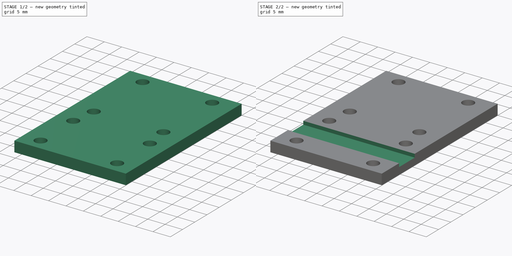
[diagram: build sequence overview — one tinted view per stage of 2, left to right]
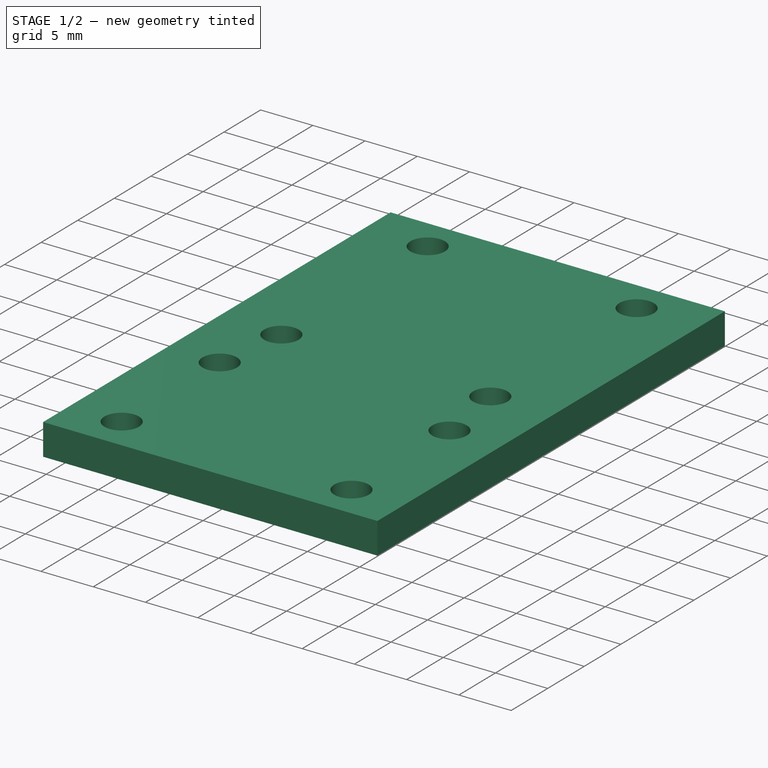
[diagram: stage 1 of 2 — iso view after this stage's code; geometry added in this stage tinted green]
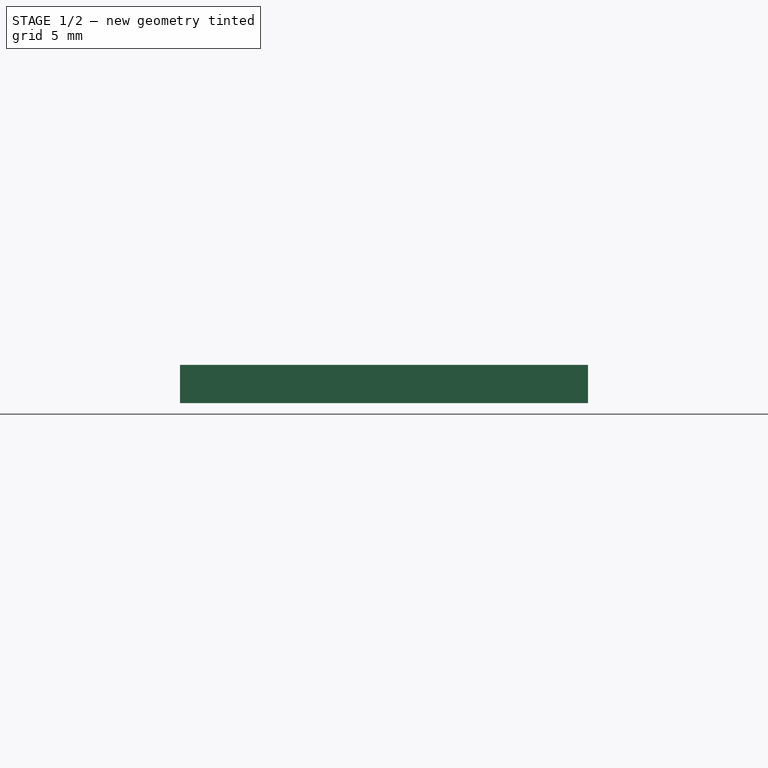
[diagram: stage 1 of 2 — front view after this stage's code; geometry added in this stage tinted green]
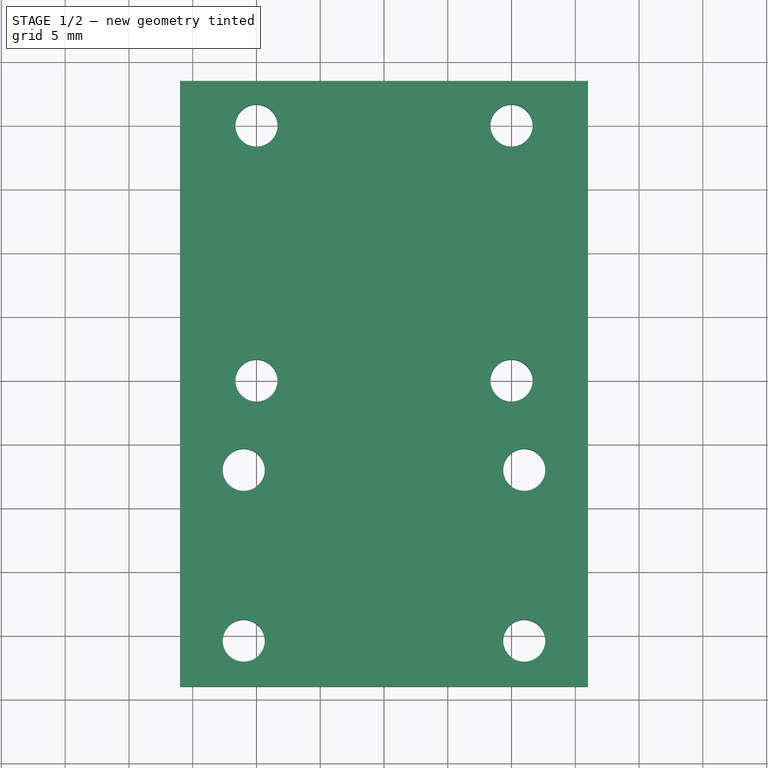
[diagram: stage 1 of 2 — top view after this stage's code; geometry added in this stage tinted green]
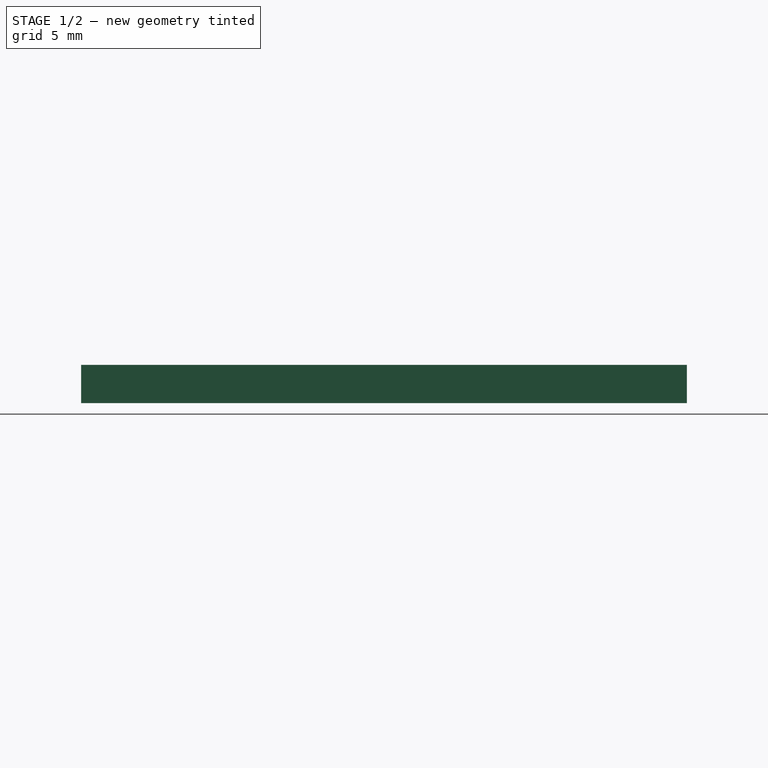
[diagram: stage 1 of 2 — right view after this stage's code; geometry added in this stage tinted green]
FCSTD DOCUMENT  (FreeCAD 0.19R24276 (Git))
Label: Knife_holder_bldc_part_3_hwin_belt_holder
License: All rights reserved
LicenseURL: http://en.wikipedia.org/wiki/All_rights_reserved
objects: Sketcher::SketchObject×2, PartDesign::Pad×1, PartDesign::Pocket×1, PartDesign::Body×1
note: 7 computed .brp shape members not serialized (recipe doc carries the construction recipe); baked Part::Feature solids carry a one-line shape summary decoded from their .brp

FEATURE [Sketcher::SketchObject] Sketch
  FullyConstrained = true
  MapMode = 5
  Support = -> [XY_Plane]
  sketch-geometry (23):
    g0: Circle CenterX=-10 CenterY=-10 CenterZ=0 NormalX=0 NormalY=0 NormalZ=1 AngleXU=0 Radius=1.65
    g1: Circle CenterX=-10 CenterY=10 CenterZ=0 NormalX=0 NormalY=0 NormalZ=1 AngleXU=0 Radius=1.65
    g2: Circle CenterX=10 CenterY=10 CenterZ=0 NormalX=0 NormalY=0 NormalZ=1 AngleXU=0 Radius=1.65
    g3: Circle CenterX=10 CenterY=-10 CenterZ=0 NormalX=0 NormalY=0 NormalZ=1 AngleXU=0 Radius=1.65
    g4: LineSegment StartX=-10 StartY=10 StartZ=0 EndX=10 EndY=10 EndZ=0
    g5: LineSegment StartX=10 StartY=10 StartZ=0 EndX=10 EndY=-10 EndZ=0
    g6: LineSegment StartX=10 StartY=-10 StartZ=0 EndX=-10 EndY=-10 EndZ=0
    g7: LineSegment StartX=-10 StartY=-10 StartZ=0 EndX=-10 EndY=10 EndZ=0
    g8: LineSegment StartX=-16 StartY=13.5 StartZ=0 EndX=16 EndY=13.5 EndZ=0
    g9: LineSegment StartX=16 StartY=-34 StartZ=0 EndX=-16 EndY=-34 EndZ=0
    g10: LineSegment StartX=-16 StartY=13.5 StartZ=0 EndX=-16 EndY=-34 EndZ=0
    g11: LineSegment StartX=16 StartY=13.5 StartZ=0 EndX=16 EndY=-34 EndZ=0
    g12: LineSegment StartX=-16 StartY=-20.5 StartZ=0 EndX=16 EndY=-20.5 EndZ=0
    g13: LineSegment StartX=-16 StartY=-26.9 StartZ=0 EndX=16 EndY=-26.9 EndZ=0
    g14: LineSegment StartX=-16 StartY=-13.5 StartZ=0 EndX=16 EndY=-13.5 EndZ=0
    g15: LineSegment StartX=-11 StartY=-17 StartZ=0 EndX=11 EndY=-17 EndZ=0
    g16: LineSegment StartX=11 StartY=-17 StartZ=0 EndX=11 EndY=-30.4 EndZ=0
    g17: LineSegment StartX=11 StartY=-30.4 StartZ=0 EndX=-11 EndY=-30.4 EndZ=0
    g18: LineSegment StartX=-11 StartY=-30.4 StartZ=0 EndX=-11 EndY=-17 EndZ=0
    g19: Circle CenterX=-11 CenterY=-17 CenterZ=0 NormalX=0 NormalY=0 NormalZ=1 AngleXU=0 Radius=1.65
    g20: Circle CenterX=11 CenterY=-17 CenterZ=0 NormalX=0 NormalY=0 NormalZ=1 AngleXU=0 Radius=1.65
    g21: Circle CenterX=-11 CenterY=-30.4 CenterZ=0 NormalX=0 NormalY=0 NormalZ=1 AngleXU=0 Radius=1.65
    g22: Circle CenterX=11 CenterY=-30.4 CenterZ=0 NormalX=0 NormalY=0 NormalZ=1 AngleXU=0 Radius=1.65
  constraints (63):
    c: Coincident(g4,g5)
    c: Coincident(g5,g6)
    c: Coincident(g6,g7)
    c: Coincident(g7,g4)
    c: Horizontal(g4)
    c: Horizontal(g6)
    c: Vertical(g5)
    c: Vertical(g7)
    c: DistanceY(g5,g5) = 20
    c: DistanceX(g6,g6) = 20
    c: Coincident(g0,g6)
    c: Coincident(g1,g4)
    c: Coincident(g2,g4)
    c: Coincident(g3,g5)
    c: Diameter(g0) = 3.3
    c: Equal(g0,g1)
    c: Equal(g0,g2)
    c: Equal(g0,g3)
    c: Symmetric(g1,g3,g-1)
    c: Horizontal(g8)
    c: DistanceX(g8,g8) = 32
    c: Horizontal(g9)
    c: DistanceY(g9,g-1) = 34
    c: Coincident(g10,g8)
    c: Coincident(g10,g9)
    c: Vertical(g10)
    c: Coincident(g11,g8)
    c: Coincident(g11,g9)
    c: Vertical(g11)
    c: DistanceX(g9,g-1) = 16
    c: DistanceY(g-1,g8) = 13.5
    c: Horizontal(g12)
    c: Horizontal(g13)
    c: Horizontal(g14)
    c: PointOnObject(g12,g11)
    c: PointOnObject(g14,g11)
    c: PointOnObject(g14,g10)
    c: PointOnObject(g12,g10)
    c: PointOnObject(g13,g10)
    c: PointOnObject(g13,g11)
    c: DistanceY(g14,g8) = 27
    c: Coincident(g15,g16)
    c: Coincident(g16,g17)
    c: Coincident(g17,g18)
    c: Coincident(g18,g15)
    c: Horizontal(g15)
    c: Horizontal(g17)
    c: Vertical(g16)
    c: Vertical(g18)
    c: Coincident(g19,g15)
    c: Coincident(g20,g15)
    c: Coincident(g21,g17)
    c: Coincident(g22,g16)
    c: Equal(g19,g20)
    c: Equal(g20,g22)
    c: Equal(g22,g21)
    c: Equal(g3,g20)
    c: DistanceX(g15,g15) = 22
    c: DistanceX(g19,g-1) = 11
    c: DistanceY(g20,g-1) = 17
    c: DistanceY(g21,g19) = 13.4
    c: DistanceY(g13,g12) = 6.4
    c: DistanceY(g12,g-1) = 20.5
FEATURE [PartDesign::Pad] Pad
  Direction = (1,1,1)
  Length = 3
  Length2 = 100
  Profile = -> Sketch
  Type = 0
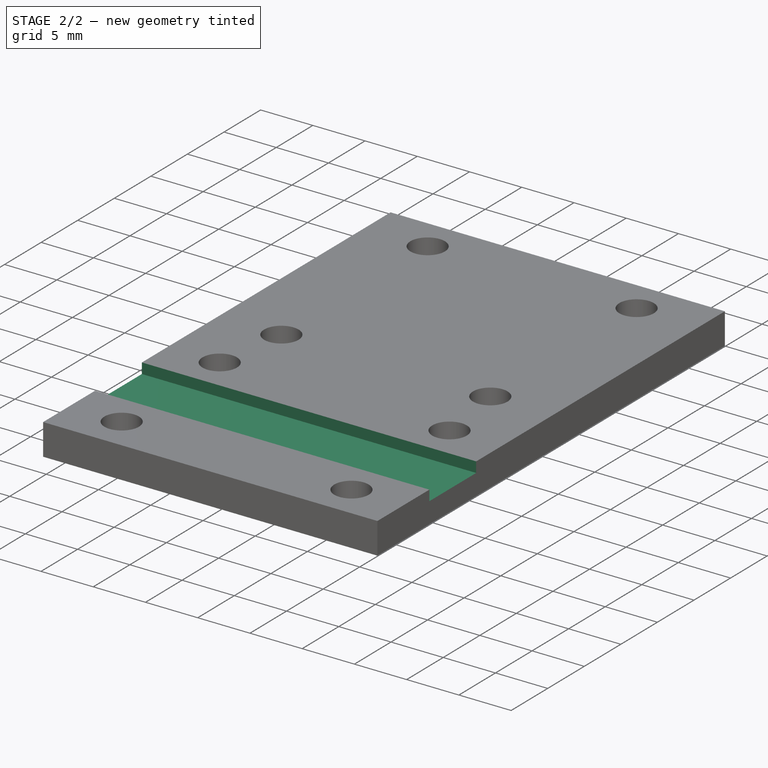
[diagram: stage 2 of 2 — iso view after this stage's code; geometry added in this stage tinted green]
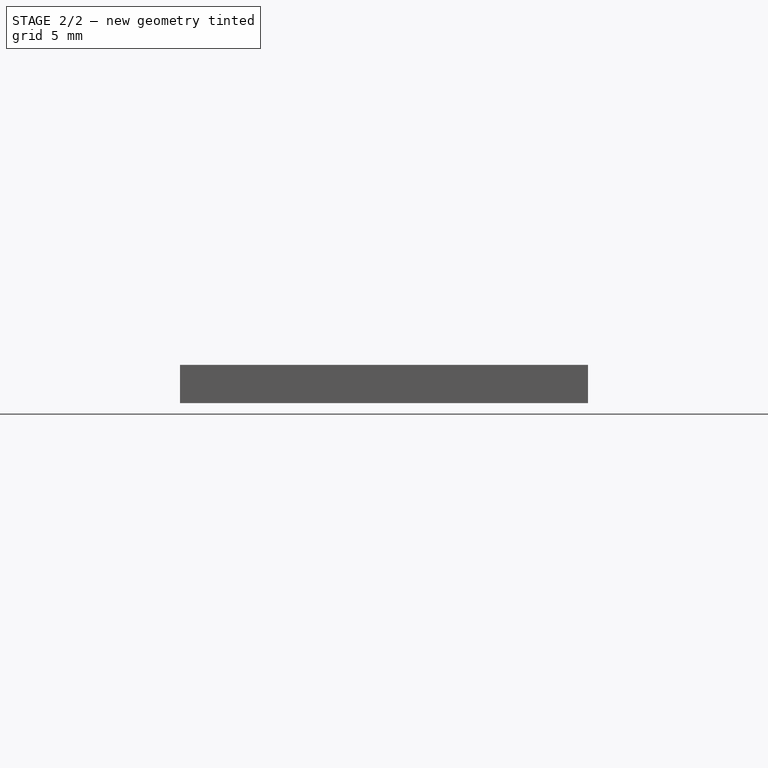
[diagram: stage 2 of 2 — front view after this stage's code; geometry added in this stage tinted green]
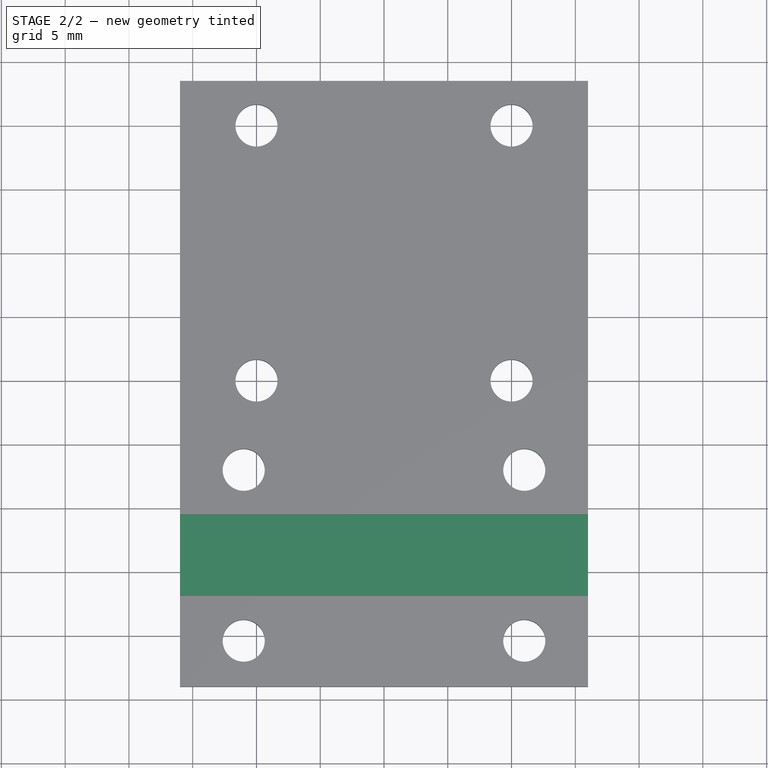
[diagram: stage 2 of 2 — top view after this stage's code; geometry added in this stage tinted green]
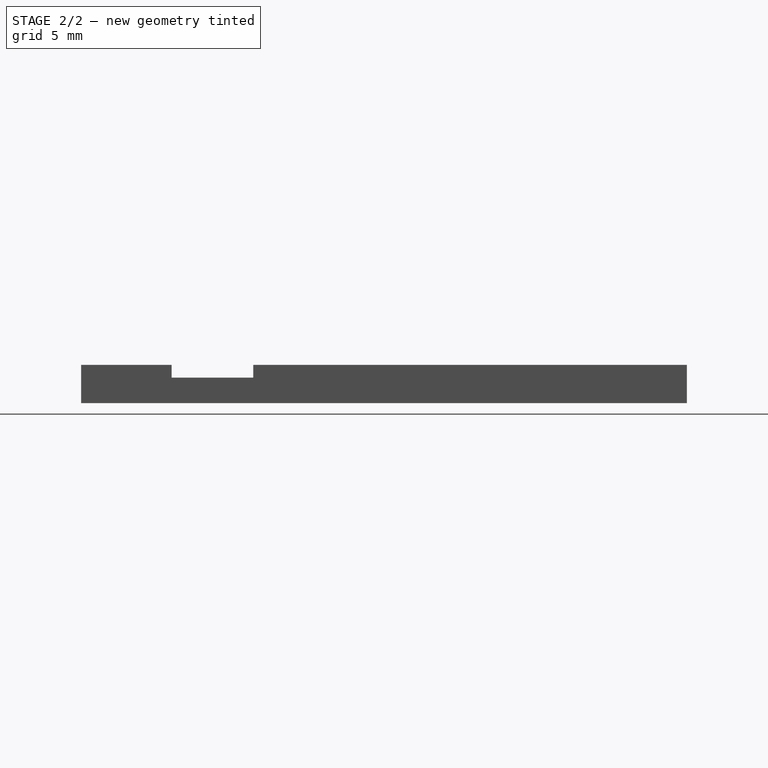
[diagram: stage 2 of 2 — right view after this stage's code; geometry added in this stage tinted green]
FEATURE [Sketcher::SketchObject] Sketch001
  FullyConstrained = false
  MapMode = 5
  Placement = pos=(0,0,3) rot=(0,0,1;0rad)
  Support = -> [Pad]
  sketch-geometry (4):
    g0: LineSegment StartX=-30.2289 StartY=-20.5 StartZ=0 EndX=31.1825 EndY=-20.5 EndZ=0
    g1: LineSegment StartX=31.1825 StartY=-20.5 StartZ=0 EndX=31.1825 EndY=-26.9 EndZ=0
    g2: LineSegment StartX=31.1825 StartY=-26.9 StartZ=0 EndX=-30.2289 EndY=-26.9 EndZ=0
    g3: LineSegment StartX=-30.2289 StartY=-26.9 StartZ=0 EndX=-30.2289 EndY=-20.5 EndZ=0
  constraints (10):
    c: Coincident(g0,g1)
    c: Coincident(g1,g2)
    c: Coincident(g2,g3)
    c: Coincident(g3,g0)
    c: Horizontal(g0)
    c: Horizontal(g2)
    c: Vertical(g1)
    c: Vertical(g3)
    c: DistanceY(g0,g-1) = 20.5
    c: DistanceY(g1,g1) = 6.4
FEATURE [PartDesign::Pocket] Pocket
  BaseFeature = -> Pad
  Length = 1
  Length2 = 100
  Profile = -> Sketch001
  Type = 0
FEATURE [PartDesign::Body] Body
  Group = -> [Sketch,Pad,Sketch001,Pocket]
  Origin = -> Origin
  Tip = -> Pocket
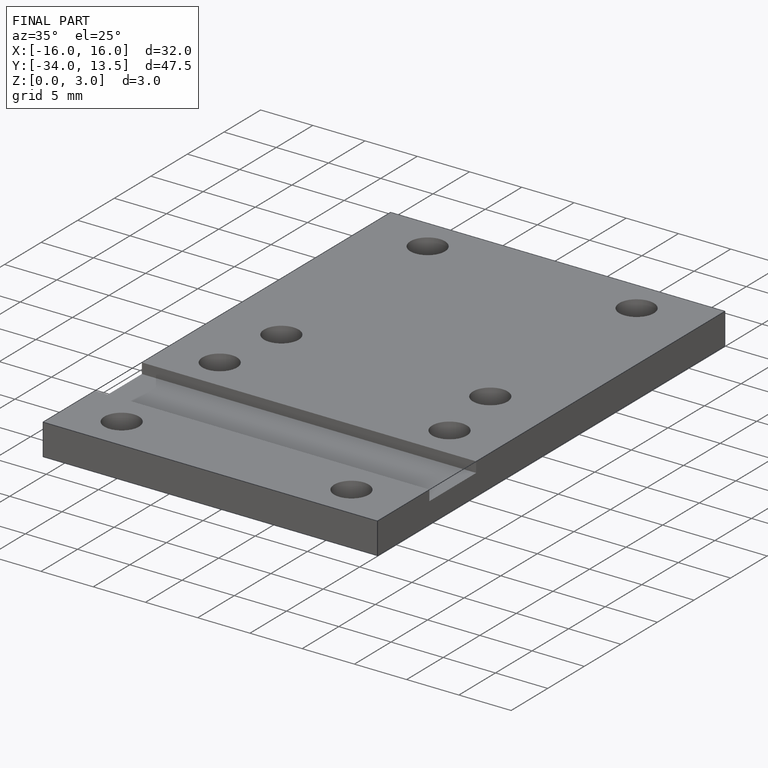
[diagram: finished part — iso view with bounding-box wireframe]
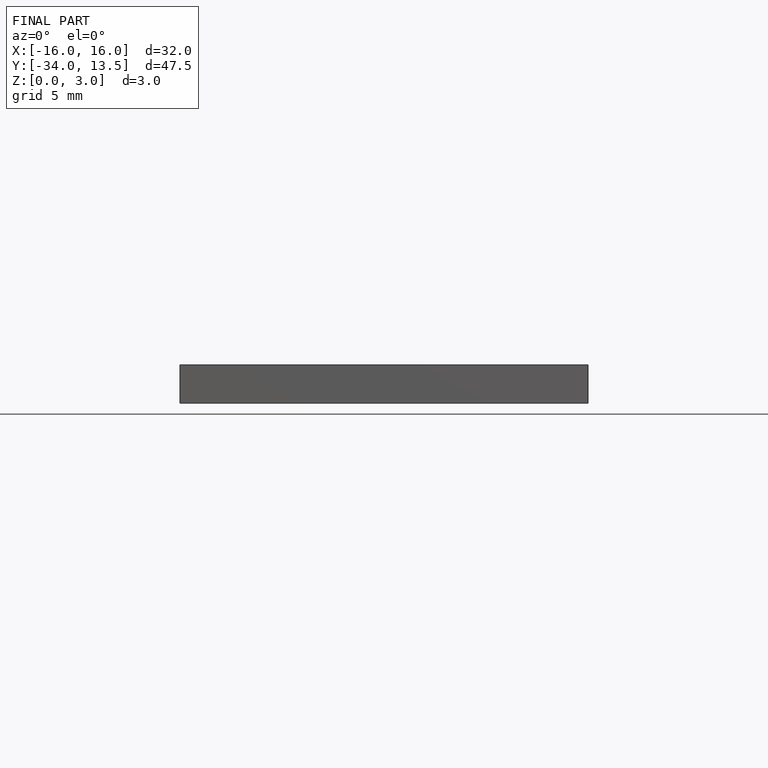
[diagram: finished part — front view with bounding-box wireframe]
